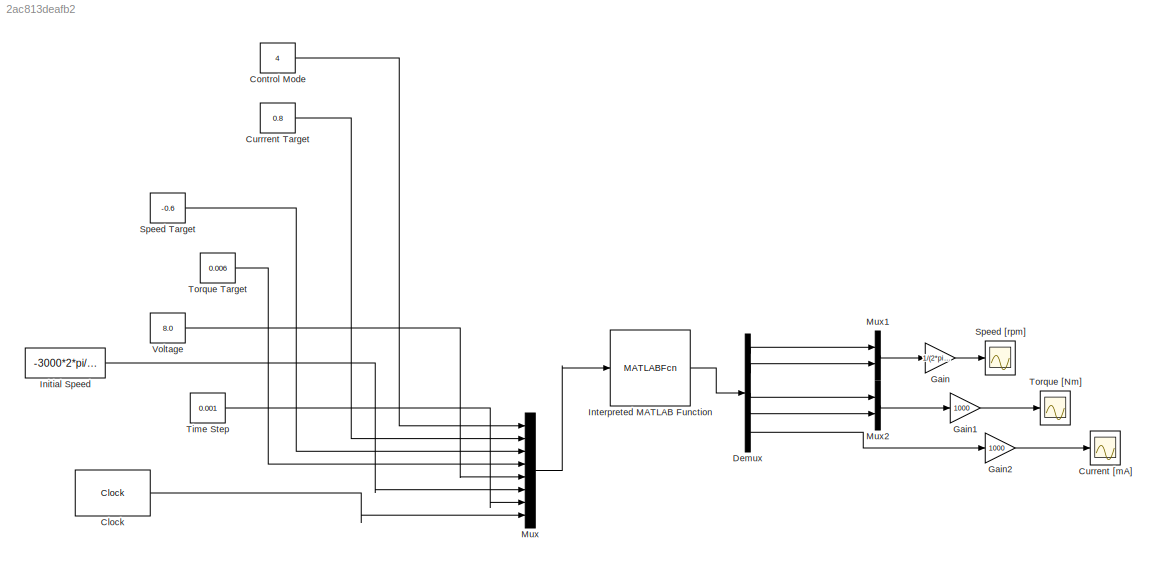
MODEL slx_2ac813deafb2
KIND model
BLOCK [Clock] Clock
  Decimation = 1000
  DisplayTime = on
BLOCK [Constant] Control Mode
  Value = 4
BLOCK [Scope] Current [mA]
  Floating = off
  LimitDataPoints = off
  NumInputPorts = 1
  Ports = [1]
  SaveName = ScopeData2
  ShowLegends = off
  TimeRange = 50
  YMax = 1000
  YMin = -1000
BLOCK [Constant] Currrent Target
  Value = 0.8
BLOCK [Demux] Demux
  DisplayOption = bar
  Outputs = 5
  Ports = [1, 5]
BLOCK [Gain] Gain
  Gain = 1/(2*pi/60)
  OutDataTypeStr = Inherit: Inherit via internal rule
  ParamDataTypeStr = Inherit: Inherit via internal rule
  SaturateOnIntegerOverflow = off
BLOCK [Gain] Gain1
  Gain = 1000
  OutDataTypeStr = Inherit: Inherit via internal rule
  ParamDataTypeStr = Inherit: Inherit via internal rule
  SaturateOnIntegerOverflow = off
BLOCK [Gain] Gain2
  Gain = 1000
  OutDataTypeStr = Inherit: Inherit via internal rule
  ParamDataTypeStr = Inherit: Inherit via internal rule
  SaturateOnIntegerOverflow = off
BLOCK [Constant] Initial Speed
  Value = -3000*2*pi/60
BLOCK [MATLABFcn] Interpreted MATLAB Function
  MATLABFcn = rw_simulink_model
  OutputDimensions = 5
  Ports = [1, 1]
BLOCK [Mux] Mux
  DisplayOption = bar
  Inputs = 8
  Ports = [8, 1]
BLOCK [Mux] Mux1
  DisplayOption = bar
  Inputs = 2
  Ports = [2, 1]
BLOCK [Mux] Mux2
  DisplayOption = bar
  Inputs = 2
  Ports = [2, 1]
BLOCK [Constant] Speed Target
  Value = -0.6
BLOCK [Scope] Speed [rpm]
  Floating = off
  LimitDataPoints = off
  NumInputPorts = 1
  Ports = [1]
  ShowLegends = off
  TimeRange = 50
  YMax = -2000
  YMin = -3000
BLOCK [Constant] Time Step
  Value = 0.001
BLOCK [Constant] Torque Target
  Value = 0.006
BLOCK [Scope] Torque [Nm]
  Floating = off
  LimitDataPoints = off
  NumInputPorts = 1
  Ports = [1]
  SaveName = ScopeData1
  ShowLegends = off
  TimeRange = 50
  YMax = 30
  YMin = -30
BLOCK [Constant] Voltage
  Value = 8.0
LINE Clock:1 -> Mux:8
LINE Control Mode:1 -> Mux:1
LINE Currrent Target:1 -> Mux:2
LINE Demux:1 -> Mux1:1
LINE Demux:2 -> Mux1:2
LINE Demux:3 -> Mux2:1
LINE Demux:4 -> Mux2:2
LINE Demux:5 -> Gain2:1
LINE Gain1:1 -> Torque [Nm]:1
LINE Gain2:1 -> Current [mA]:1
LINE Gain:1 -> Speed [rpm]:1
LINE Initial Speed:1 -> Mux:6
LINE Interpreted MATLAB Function:1 -> Demux:1
LINE Mux1:1 -> Gain:1
LINE Mux2:1 -> Gain1:1
LINE Mux:1 -> Interpreted MATLAB Function:1
LINE Speed Target:1 -> Mux:3
LINE Time Step:1 -> Mux:7
LINE Torque Target:1 -> Mux:4
LINE Voltage:1 -> Mux:5
